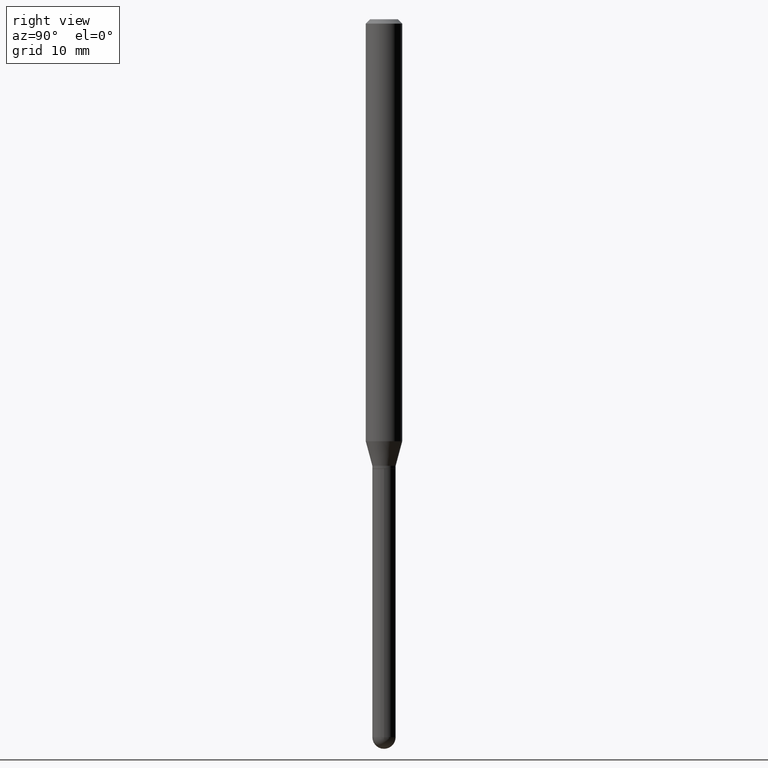
[diagram: clean part render]
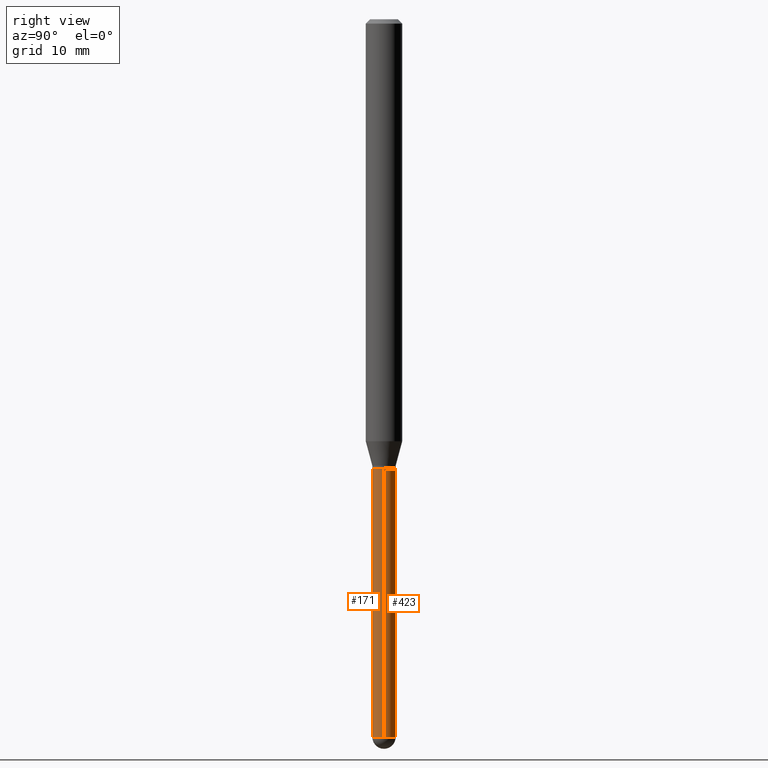
[diagram: same view with one multi-face feature highlighted, each face labeled with its STEP entity id]
A machine part, right view. The highlighted faces form ONE feature: a constant-radius fillet chain: 2 tangent blend faces with common blend radius 1.016 mm. The faces share edges in the B-rep.
Their STEP definitions:
[1] entity #423 (Cylinder):
#4 = EDGE_CURVE ( 'NONE', #256, #79, #27, .T. ) ;
#18 = DIRECTION ( 'NONE',  ( 1.000000000000000000, -6.982962677686259611E-15, 0.000000000000000000 ) ) ;
#27 = CIRCLE ( 'NONE', #165, 0.04000000000000000083 ) ;
#42 = CIRCLE ( 'NONE', #467, 0.04000000000000000083 ) ;
#75 = CARTESIAN_POINT ( 'NONE',  ( 3.766021961525111077E-29, -5.376881261818445562E-15, -1.540000000000000258 ) ) ;
#79 = VERTEX_POINT ( 'NONE', #417 ) ;
#82 = DIRECTION ( 'NONE',  ( 1.000000000000000000, -6.982962677686259611E-15, 0.000000000000000000 ) ) ;
#87 = DIRECTION ( 'NONE',  ( -2.445468806185136597E-29, 3.491481338843145583E-15, 1.000000000000000000 ) ) ;
#90 = EDGE_CURVE ( 'NONE', #177, #476, #304, .T. ) ;
#111 = CARTESIAN_POINT ( 'NONE',  ( -0.04000000000000000083, -6.698745583382250838E-15, -2.459999999999999964 ) ) ;
#121 = ORIENTED_EDGE ( 'NONE', *, *, #504, .T. ) ;
#126 = CARTESIAN_POINT ( 'NONE',  ( 0.000000000000000000, 0.000000000000000000, 0.000000000000000000 ) ) ;
#141 = DIRECTION ( 'NONE',  ( -2.445468806185136877E-29, 3.491481338843145188E-15, 1.000000000000000000 ) ) ;
#142 = EDGE_CURVE ( 'NONE', #256, #258, #500, .T. ) ;
#143 = CARTESIAN_POINT ( 'NONE',  ( 0.04000000000000000083, -2.793185071074506290E-16, 1.950470710318374387E-30 ) ) ;
#145 = AXIS2_PLACEMENT_3D ( 'NONE', #75, #472, #436 ) ;
#165 = AXIS2_PLACEMENT_3D ( 'NONE', #224, #228, #18 ) ;
#166 = FACE_OUTER_BOUND ( 'NONE', #205, .T. ) ;
#177 = VERTEX_POINT ( 'NONE', #111 ) ;
#203 = CARTESIAN_POINT ( 'NONE',  ( 0.04000000000000000083, -7.262281184793741991E-15, -2.459999999999999964 ) ) ;
#205 = EDGE_LOOP ( 'NONE', ( #121, #340, #319, #337, #450 ) ) ;
#224 = CARTESIAN_POINT ( 'NONE',  ( 6.015853263215436432E-29, -8.589044093554138346E-15, -2.459999999999999964 ) ) ;
#226 = EDGE_CURVE ( 'NONE', #258, #476, #376, .T. ) ;
#228 = DIRECTION ( 'NONE',  ( -2.445468806185136597E-29, 3.491481338843145583E-15, 1.000000000000000000 ) ) ;
#242 = VECTOR ( 'NONE', #384, 39.37007874015748143 ) ;
#256 = VERTEX_POINT ( 'NONE', #203 ) ;
#258 = VERTEX_POINT ( 'NONE', #356 ) ;
#304 = LINE ( 'NONE', #459, #242 ) ;
#319 = ORIENTED_EDGE ( 'NONE', *, *, #226, .F. ) ;
#327 = CYLINDRICAL_SURFACE ( 'NONE', #422, 0.04000000000000000083 ) ;
#337 = ORIENTED_EDGE ( 'NONE', *, *, #142, .F. ) ;
#340 = ORIENTED_EDGE ( 'NONE', *, *, #90, .T. ) ;
#355 = CARTESIAN_POINT ( 'NONE',  ( -0.04000000000000000083, -6.698745583382250838E-15, -1.540000000000000258 ) ) ;
#356 = CARTESIAN_POINT ( 'NONE',  ( 0.04000000000000000083, -5.656199768925895599E-15, -1.540000000000000258 ) ) ;
#361 = CARTESIAN_POINT ( 'NONE',  ( 6.015853263215436432E-29, -8.589044093554138346E-15, -2.459999999999999964 ) ) ;
#370 = DIRECTION ( 'NONE',  ( 1.000000000000000000, -6.982962677686265922E-15, 4.876176775795935793E-29 ) ) ;
#376 = CIRCLE ( 'NONE', #145, 0.04000000000000000083 ) ;
#384 = DIRECTION ( 'NONE',  ( -2.445468806185136877E-29, 3.491481338843145188E-15, 1.000000000000000000 ) ) ;
#406 = DIRECTION ( 'NONE',  ( -2.445468806185136597E-29, 3.491481338843145583E-15, 1.000000000000000000 ) ) ;
#417 = CARTESIAN_POINT ( 'NONE',  ( 2.793185071075110754E-16, 0.03999999999999144518, -2.460000000000000409 ) ) ;
#422 = AXIS2_PLACEMENT_3D ( 'NONE', #126, #406, #370 ) ;
#423 = ADVANCED_FACE ( 'NONE', ( #166 ), #327, .T. ) ;
#436 = DIRECTION ( 'NONE',  ( 1.000000000000000000, -6.982962677686259611E-15, 0.000000000000000000 ) ) ;
#450 = ORIENTED_EDGE ( 'NONE', *, *, #4, .T. ) ;
#459 = CARTESIAN_POINT ( 'NONE',  ( -0.04000000000000000083, 2.842170943040400803E-16, -1.967574036101962509E-30 ) ) ;
#467 = AXIS2_PLACEMENT_3D ( 'NONE', #361, #87, #82 ) ;
#472 = DIRECTION ( 'NONE',  ( -2.445468806185136597E-29, 3.491481338843145583E-15, 1.000000000000000000 ) ) ;
#476 = VERTEX_POINT ( 'NONE', #355 ) ;
#500 = LINE ( 'NONE', #143, #502 ) ;
#502 = VECTOR ( 'NONE', #141, 39.37007874015748143 ) ;
#504 = EDGE_CURVE ( 'NONE', #79, #177, #42, .T. ) ;
[2] entity #171 (Cylinder):
#3 = DIRECTION ( 'NONE',  ( -2.445468806185136597E-29, 3.491481338843145583E-15, 1.000000000000000000 ) ) ;
#10 = DIRECTION ( 'NONE',  ( 1.000000000000000000, -6.982962677686259611E-15, 0.000000000000000000 ) ) ;
#34 = ORIENTED_EDGE ( 'NONE', *, *, #90, .F. ) ;
#55 = CIRCLE ( 'NONE', #120, 0.04000000000000000083 ) ;
#57 = DIRECTION ( 'NONE',  ( 1.000000000000000000, -6.982962677686259611E-15, 0.000000000000000000 ) ) ;
#62 = EDGE_LOOP ( 'NONE', ( #34, #394, #371, #249, #135 ) ) ;
#74 = AXIS2_PLACEMENT_3D ( 'NONE', #84, #398, #116 ) ;
#84 = CARTESIAN_POINT ( 'NONE',  ( 0.000000000000000000, 0.000000000000000000, 0.000000000000000000 ) ) ;
#90 = EDGE_CURVE ( 'NONE', #177, #476, #304, .T. ) ;
#108 = CARTESIAN_POINT ( 'NONE',  ( 3.766021961525111077E-29, -5.376881261818445562E-15, -1.540000000000000258 ) ) ;
#111 = CARTESIAN_POINT ( 'NONE',  ( -0.04000000000000000083, -6.698745583382250838E-15, -2.459999999999999964 ) ) ;
#115 = DIRECTION ( 'NONE',  ( 1.000000000000000000, -6.982962677686259611E-15, 0.000000000000000000 ) ) ;
#116 = DIRECTION ( 'NONE',  ( 1.000000000000000000, -6.982962677686265922E-15, 4.876176775795935793E-29 ) ) ;
#120 = AXIS2_PLACEMENT_3D ( 'NONE', #446, #289, #10 ) ;
#135 = ORIENTED_EDGE ( 'NONE', *, *, #209, .F. ) ;
#141 = DIRECTION ( 'NONE',  ( -2.445468806185136877E-29, 3.491481338843145188E-15, 1.000000000000000000 ) ) ;
#142 = EDGE_CURVE ( 'NONE', #256, #258, #500, .T. ) ;
#143 = CARTESIAN_POINT ( 'NONE',  ( 0.04000000000000000083, -2.793185071074506290E-16, 1.950470710318374387E-30 ) ) ;
#171 = ADVANCED_FACE ( 'NONE', ( #464 ), #352, .T. ) ;
#177 = VERTEX_POINT ( 'NONE', #111 ) ;
#203 = CARTESIAN_POINT ( 'NONE',  ( 0.04000000000000000083, -7.262281184793741991E-15, -2.459999999999999964 ) ) ;
#209 = EDGE_CURVE ( 'NONE', #476, #258, #267, .T. ) ;
#215 = CARTESIAN_POINT ( 'NONE',  ( -2.842170943039801268E-16, -0.04000000000000862588, -2.459999999999999520 ) ) ;
#227 = CIRCLE ( 'NONE', #286, 0.04000000000000000083 ) ;
#242 = VECTOR ( 'NONE', #384, 39.37007874015748143 ) ;
#249 = ORIENTED_EDGE ( 'NONE', *, *, #142, .T. ) ;
#256 = VERTEX_POINT ( 'NONE', #203 ) ;
#258 = VERTEX_POINT ( 'NONE', #356 ) ;
#267 = CIRCLE ( 'NONE', #333, 0.04000000000000000083 ) ;
#286 = AXIS2_PLACEMENT_3D ( 'NONE', #363, #3, #57 ) ;
#289 = DIRECTION ( 'NONE',  ( -2.445468806185136597E-29, 3.491481338843145583E-15, 1.000000000000000000 ) ) ;
#304 = LINE ( 'NONE', #459, #242 ) ;
#328 = VERTEX_POINT ( 'NONE', #215 ) ;
#333 = AXIS2_PLACEMENT_3D ( 'NONE', #108, #505, #115 ) ;
#352 = CYLINDRICAL_SURFACE ( 'NONE', #74, 0.04000000000000000083 ) ;
#354 = EDGE_CURVE ( 'NONE', #177, #328, #55, .T. ) ;
#355 = CARTESIAN_POINT ( 'NONE',  ( -0.04000000000000000083, -6.698745583382250838E-15, -1.540000000000000258 ) ) ;
#356 = CARTESIAN_POINT ( 'NONE',  ( 0.04000000000000000083, -5.656199768925895599E-15, -1.540000000000000258 ) ) ;
#363 = CARTESIAN_POINT ( 'NONE',  ( 6.015853263215436432E-29, -8.589044093554138346E-15, -2.459999999999999964 ) ) ;
#371 = ORIENTED_EDGE ( 'NONE', *, *, #418, .T. ) ;
#384 = DIRECTION ( 'NONE',  ( -2.445468806185136877E-29, 3.491481338843145188E-15, 1.000000000000000000 ) ) ;
#394 = ORIENTED_EDGE ( 'NONE', *, *, #354, .T. ) ;
#398 = DIRECTION ( 'NONE',  ( -2.445468806185136597E-29, 3.491481338843145583E-15, 1.000000000000000000 ) ) ;
#418 = EDGE_CURVE ( 'NONE', #328, #256, #227, .T. ) ;
#446 = CARTESIAN_POINT ( 'NONE',  ( 6.015853263215436432E-29, -8.589044093554138346E-15, -2.459999999999999964 ) ) ;
#459 = CARTESIAN_POINT ( 'NONE',  ( -0.04000000000000000083, 2.842170943040400803E-16, -1.967574036101962509E-30 ) ) ;
#464 = FACE_OUTER_BOUND ( 'NONE', #62, .T. ) ;
#476 = VERTEX_POINT ( 'NONE', #355 ) ;
#500 = LINE ( 'NONE', #143, #502 ) ;
#502 = VECTOR ( 'NONE', #141, 39.37007874015748143 ) ;
#505 = DIRECTION ( 'NONE',  ( -2.445468806185136597E-29, 3.491481338843145583E-15, 1.000000000000000000 ) ) ;